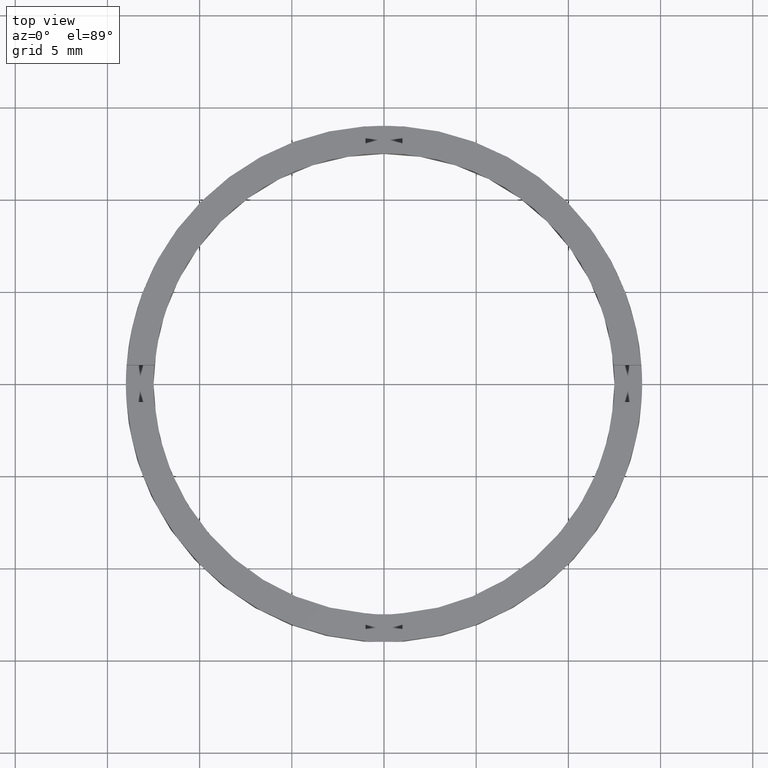
[diagram: clean part render]
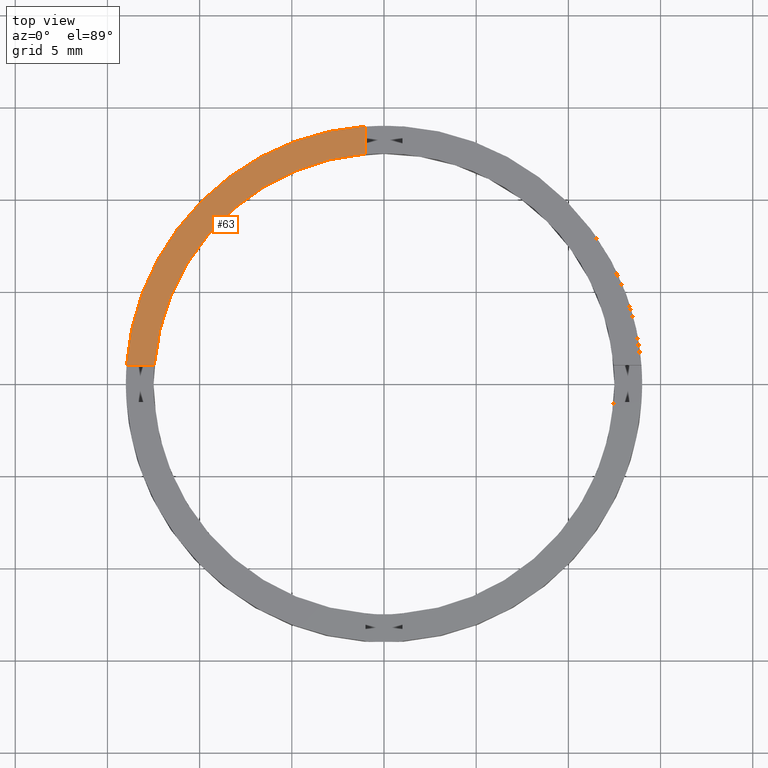
[diagram: same view with one face highlighted and labeled with its STEP entity id]
A machine part, top view. The second image highlights one B-rep face of the part: STEP entity #63.
In plain terms, the highlighted planar face has unit normal (0, 0, 1).
Its self-contained STEP definition (entity closure, byte-faithful):
#2 = FACE_OUTER_BOUND ( 'NONE', #368, .T. ) ;
#13 = DIRECTION ( 'NONE',  ( 0.000000000000000000, 0.000000000000000000, 1.000000000000000000 ) ) ;
#14 = CARTESIAN_POINT ( 'NONE',  ( 0.000000000000000000, 0.000000000000000000, 2.500000000000000000 ) ) ;
#15 = EDGE_CURVE ( 'NONE', #456, #420, #459, .T. ) ;
#18 = DIRECTION ( 'NONE',  ( 1.000000000000000000, 0.000000000000000000, 0.000000000000000000 ) ) ;
#33 = DIRECTION ( 'NONE',  ( 0.000000000000000000, 0.000000000000000000, 1.000000000000000000 ) ) ;
#54 = CARTESIAN_POINT ( 'NONE',  ( -4.000000000000185629, 0.9999999999999790168, 2.500000000000000000 ) ) ;
#63 = ADVANCED_FACE ( 'NONE', ( #2 ), #639, .T. ) ;
#75 = DIRECTION ( 'NONE',  ( 0.000000000000000000, 0.000000000000000000, 1.000000000000000000 ) ) ;
#108 = DIRECTION ( 'NONE',  ( -1.000000000000000000, -1.734723475976807094E-16, 0.000000000000000000 ) ) ;
#128 = ORIENTED_EDGE ( 'NONE', *, *, #233, .F. ) ;
#149 = CARTESIAN_POINT ( 'NONE',  ( -1.000000000000024647, 4.000000000000000000, 2.500000000000000000 ) ) ;
#156 = VERTEX_POINT ( 'NONE', #589 ) ;
#171 = ORIENTED_EDGE ( 'NONE', *, *, #15, .F. ) ;
#203 = VECTOR ( 'NONE', #108, 1000.000000000000000 ) ;
#218 = DIRECTION ( 'NONE',  ( 1.000000000000000000, 0.000000000000000000, 0.000000000000000000 ) ) ;
#233 = EDGE_CURVE ( 'NONE', #415, #156, #757, .T. ) ;
#329 = CIRCLE ( 'NONE', #782, 14.00000000000000000 ) ;
#354 = CIRCLE ( 'NONE', #682, 12.50000000000000000 ) ;
#368 = EDGE_LOOP ( 'NONE', ( #128, #666, #171, #427 ) ) ;
#415 = VERTEX_POINT ( 'NONE', #644 ) ;
#420 = VERTEX_POINT ( 'NONE', #722 ) ;
#427 = ORIENTED_EDGE ( 'NONE', *, *, #625, .F. ) ;
#456 = VERTEX_POINT ( 'NONE', #736 ) ;
#459 = LINE ( 'NONE', #54, #203 ) ;
#515 = DIRECTION ( 'NONE',  ( -0.000000000000000000, -1.000000000000000000, -0.000000000000000000 ) ) ;
#548 = EDGE_CURVE ( 'NONE', #415, #420, #329, .T. ) ;
#571 = CARTESIAN_POINT ( 'NONE',  ( 0.000000000000000000, 0.000000000000000000, 2.500000000000000000 ) ) ;
#589 = CARTESIAN_POINT ( 'NONE',  ( -1.000000000000024647, 12.45993579437711141, 2.500000000000000000 ) ) ;
#625 = EDGE_CURVE ( 'NONE', #156, #456, #354, .T. ) ;
#639 = PLANE ( 'NONE',  #718 ) ;
#644 = CARTESIAN_POINT ( 'NONE',  ( -1.000000000000024647, 13.96424004376894068, 2.500000000000000000 ) ) ;
#666 = ORIENTED_EDGE ( 'NONE', *, *, #548, .T. ) ;
#682 = AXIS2_PLACEMENT_3D ( 'NONE', #693, #33, #218 ) ;
#693 = CARTESIAN_POINT ( 'NONE',  ( 0.000000000000000000, 0.000000000000000000, 2.500000000000000000 ) ) ;
#718 = AXIS2_PLACEMENT_3D ( 'NONE', #571, #13, #720 ) ;
#720 = DIRECTION ( 'NONE',  ( 1.000000000000000000, 0.000000000000000000, -0.000000000000000000 ) ) ;
#722 = CARTESIAN_POINT ( 'NONE',  ( -13.96424004376894246, 0.9999999999999772404, 2.500000000000000000 ) ) ;
#736 = CARTESIAN_POINT ( 'NONE',  ( -12.45993579437711496, 0.9999999999999774625, 2.500000000000000000 ) ) ;
#757 = LINE ( 'NONE', #149, #773 ) ;
#773 = VECTOR ( 'NONE', #515, 1000.000000000000000 ) ;
#782 = AXIS2_PLACEMENT_3D ( 'NONE', #14, #75, #18 ) ;